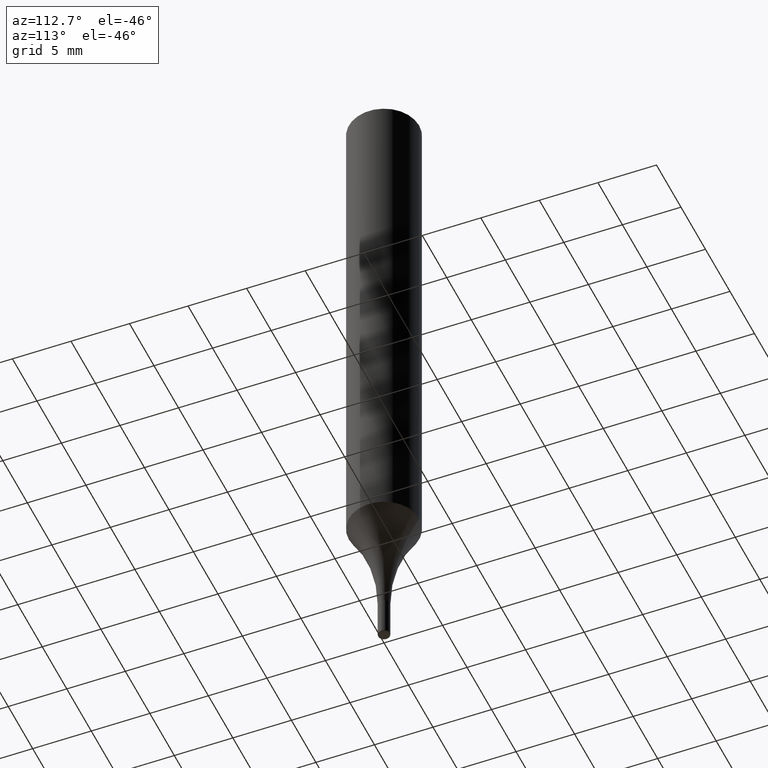
[diagram: clean part render]
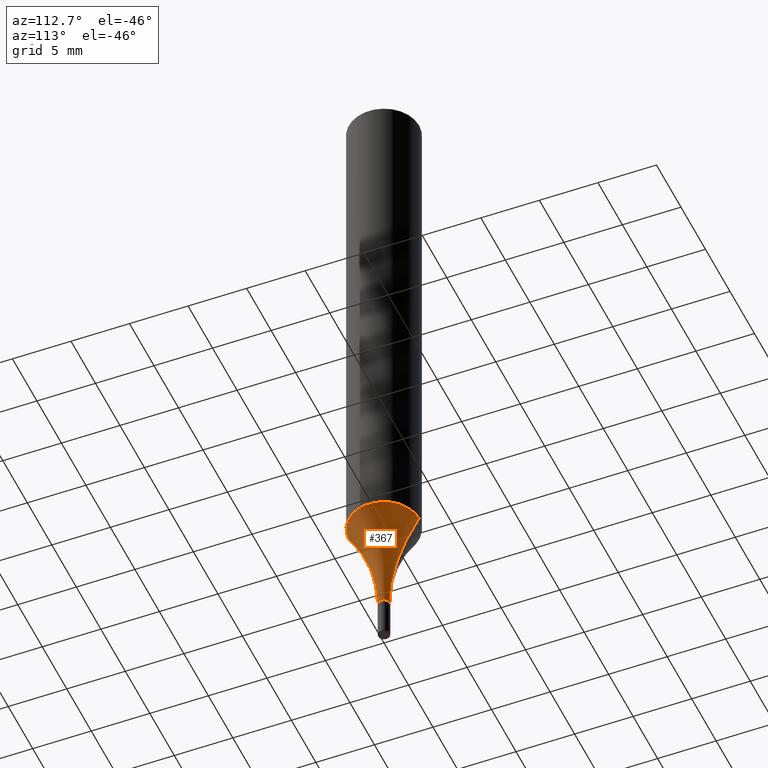
[diagram: same view with one face highlighted and labeled with its STEP entity id]
A machine part, auxiliary view. The second image highlights one B-rep face of the part: STEP entity #367.
In plain terms, the highlighted toroidal blend (fillet) surface has major radius 16.3754 mm and minor (blend) radius 15.875 mm.
Its self-contained STEP definition (entity closure, byte-faithful):
#3 = DIRECTION ( 'NONE',  ( -6.982962677686265922E-15, -1.000000000000000000, 4.626330217890367758E-15 ) ) ;
#14 = EDGE_CURVE ( 'NONE', #197, #232, #289, .T. ) ;
#17 = ORIENTED_EDGE ( 'NONE', *, *, #131, .T. ) ;
#28 = TOROIDAL_SURFACE ( 'NONE', #438, 0.6446999999999999398, 0.6250000000000000000 ) ;
#33 = ORIENTED_EDGE ( 'NONE', *, *, #401, .F. ) ;
#45 = CARTESIAN_POINT ( 'NONE',  ( 4.895639449387564790E-16, 0.01969999999999257762, -2.106099999999999639 ) ) ;
#68 = AXIS2_PLACEMENT_3D ( 'NONE', #489, #320, #480 ) ;
#118 = CIRCLE ( 'NONE', #192, 0.6250000000000001110 ) ;
#131 = EDGE_CURVE ( 'NONE', #488, #197, #118, .T. ) ;
#154 = CARTESIAN_POINT ( 'NONE',  ( -4.501916038304283844E-15, -0.6447000000000073783, -2.106099999999997419 ) ) ;
#192 = AXIS2_PLACEMENT_3D ( 'NONE', #154, #403, #440 ) ;
#197 = VERTEX_POINT ( 'NONE', #435 ) ;
#198 = CARTESIAN_POINT ( 'NONE',  ( 4.330639563837398876E-29, -6.173146541507197219E-15, -1.769473441332980679 ) ) ;
#215 = CARTESIAN_POINT ( 'NONE',  ( 4.580869017445415958E-15, 0.6446999999999926123, -2.106100000000001859 ) ) ;
#232 = VERTEX_POINT ( 'NONE', #45 ) ;
#233 = EDGE_CURVE ( 'NONE', #488, #317, #388, .T. ) ;
#249 = DIRECTION ( 'NONE',  ( 7.105427357600999492E-15, 1.000000000000000000, 0.000000000000000000 ) ) ;
#252 = DIRECTION ( 'NONE',  ( -2.447417103121389327E-29, 3.488691266740256803E-15, 1.000000000000000000 ) ) ;
#253 = AXIS2_PLACEMENT_3D ( 'NONE', #215, #369, #249 ) ;
#281 = DIRECTION ( 'NONE',  ( -2.447417103121389327E-29, 3.488691266740256803E-15, 1.000000000000000000 ) ) ;
#285 = CARTESIAN_POINT ( 'NONE',  ( 5.150401852706515444E-29, -7.353408847737546844E-15, -2.106099999999999639 ) ) ;
#289 = CIRCLE ( 'NONE', #68, 0.01969999999999992590 ) ;
#297 = AXIS2_PLACEMENT_3D ( 'NONE', #198, #281, #3 ) ;
#317 = VERTEX_POINT ( 'NONE', #497 ) ;
#320 = DIRECTION ( 'NONE',  ( -2.447417103121389327E-29, 3.488691266740256803E-15, 1.000000000000000000 ) ) ;
#337 = EDGE_LOOP ( 'NONE', ( #33, #468, #17, #459 ) ) ;
#367 = ADVANCED_FACE ( 'NONE', ( #457 ), #28, .F. ) ;
#369 = DIRECTION ( 'NONE',  ( 1.000000000000000000, -7.105427357601001070E-15, 4.926281340013380530E-29 ) ) ;
#388 = CIRCLE ( 'NONE', #297, 0.1181000000000000383 ) ;
#389 = CARTESIAN_POINT ( 'NONE',  ( -8.246878922347047766E-16, -0.1181000000000062278, -1.769473441332980013 ) ) ;
#401 = EDGE_CURVE ( 'NONE', #317, #232, #481, .T. ) ;
#403 = DIRECTION ( 'NONE',  ( -1.000000000000000000, 6.982962677686265922E-15, -4.883557194083112901E-29 ) ) ;
#410 = DIRECTION ( 'NONE',  ( -6.982962677686266711E-15, -1.000000000000000000, 3.488691266740256408E-15 ) ) ;
#435 = CARTESIAN_POINT ( 'NONE',  ( -1.375643647503673714E-16, -0.01970000000000727072, -2.106099999999999639 ) ) ;
#438 = AXIS2_PLACEMENT_3D ( 'NONE', #285, #252, #410 ) ;
#440 = DIRECTION ( 'NONE',  ( -6.982962677686262766E-15, -1.000000000000000000, 0.000000000000000000 ) ) ;
#457 = FACE_OUTER_BOUND ( 'NONE', #337, .T. ) ;
#459 = ORIENTED_EDGE ( 'NONE', *, *, #14, .T. ) ;
#468 = ORIENTED_EDGE ( 'NONE', *, *, #233, .F. ) ;
#480 = DIRECTION ( 'NONE',  ( -6.982962677686264344E-15, -1.000000000000000000, 0.000000000000000000 ) ) ;
#481 = CIRCLE ( 'NONE', #253, 0.6250000000000001110 ) ;
#488 = VERTEX_POINT ( 'NONE', #389 ) ;
#489 = CARTESIAN_POINT ( 'NONE',  ( 5.154505160883957169E-29, -7.347532676881652574E-15, -2.106099999999999639 ) ) ;
#497 = CARTESIAN_POINT ( 'NONE',  ( 8.391509709327214858E-16, 0.1180999999999938072, -1.769473441332981123 ) ) ;